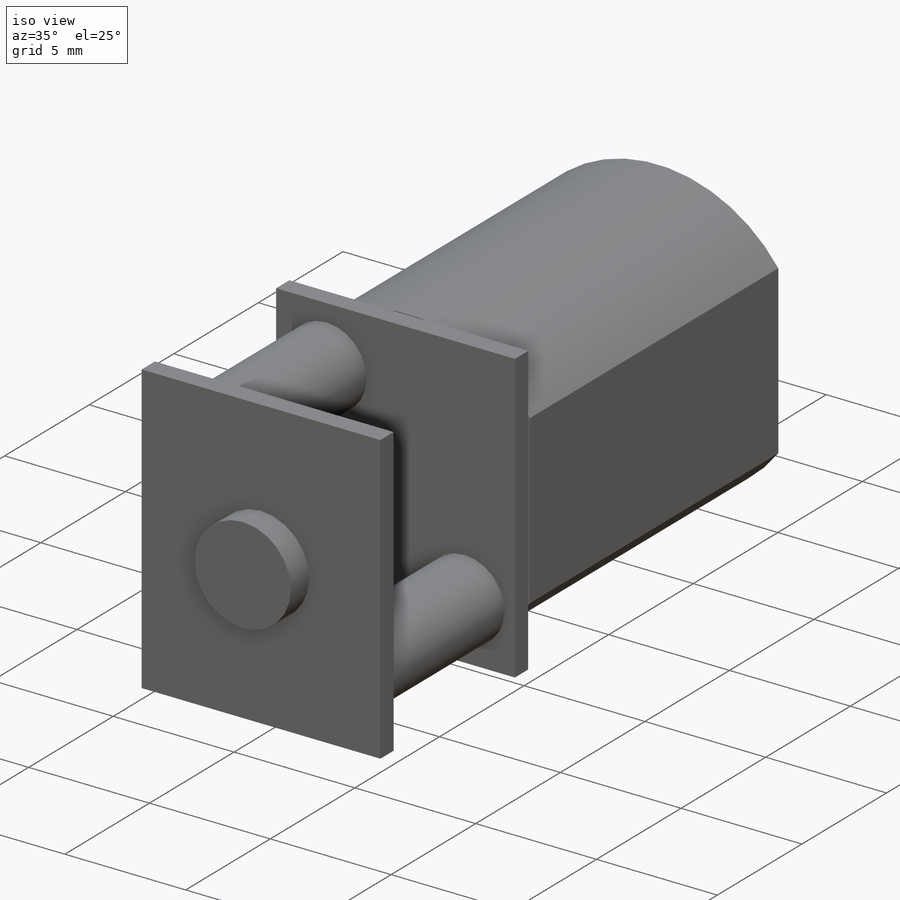
[diagram: iso view]
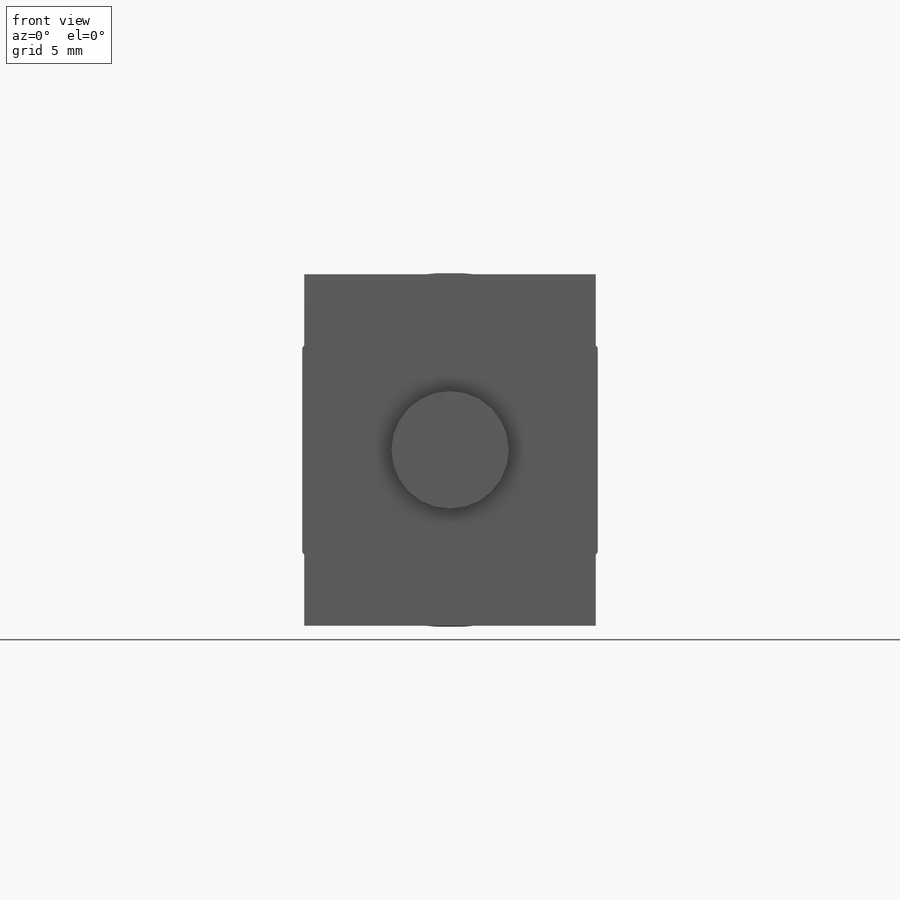
[diagram: front view]
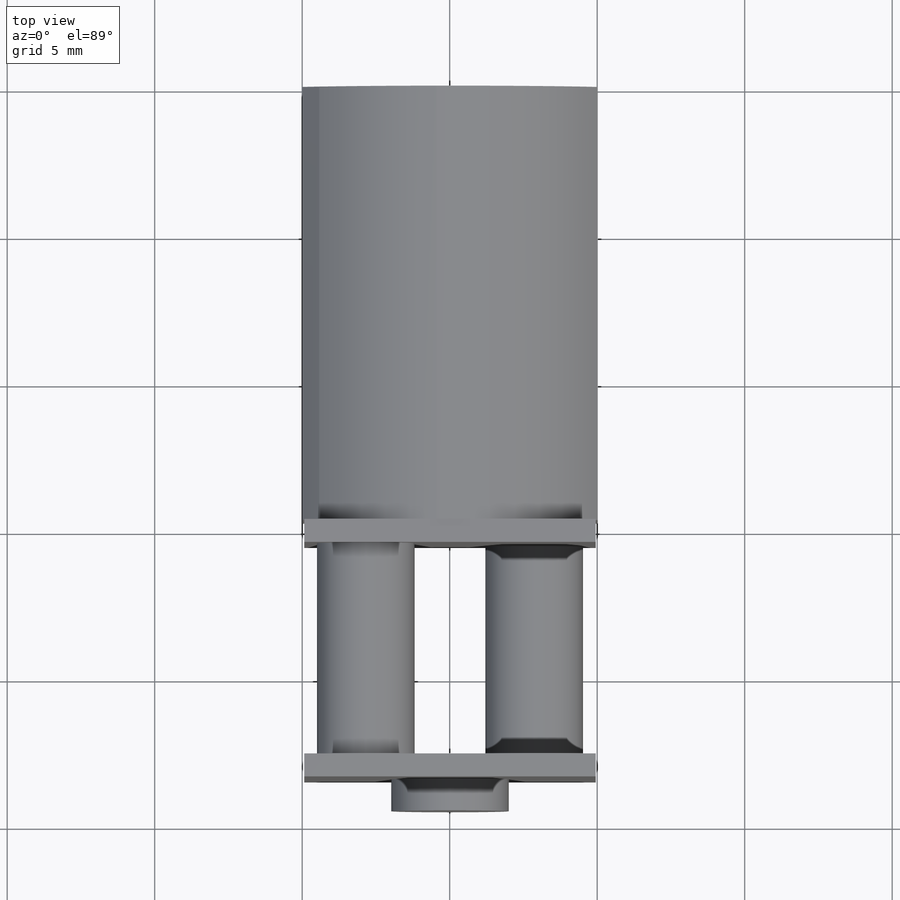
[diagram: top view]
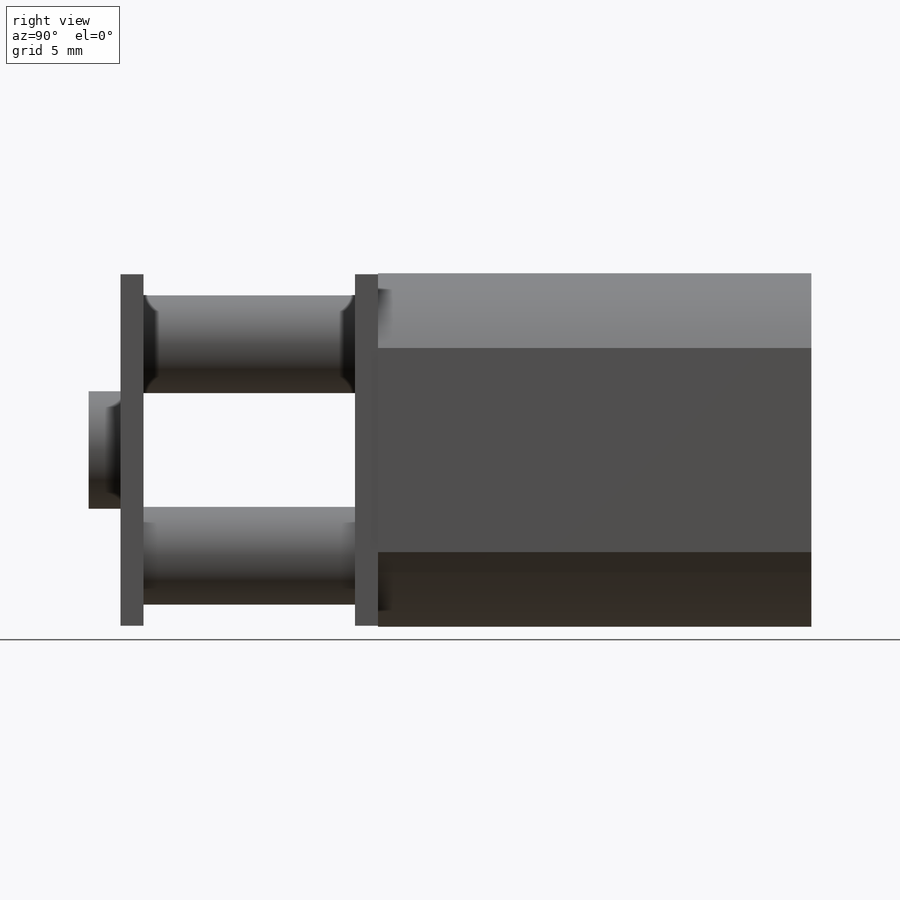
[diagram: right view]
SOLIDWORKS PART (.sldprt)
format: sldprt  version: not decoded by parser v0  size: 218,112 bytes
history: native  units: mm
features: sketch x5, extrude x5, plane x3, material x1 (+8 scaffold rows collapsed)
feature tree (22):
  scaffold x8  (default folders/planes/origin — collapsed)
  material  "Matériau <non spécifié>"
  plane  "Plan de face"
  plane  "Plan de dessus"
  plane  "Plan de droite"
  sketch  "Esquisse1"  dims[c1.D3=~6.196588mm c1.D4=~6.196588mm c1.D1=10.02mm c1.D2=6.92mm c2.D3=2.55mm c2.D4=2.55mm c2.D5=12.02mm]
  extrude  "Boss.-Extru.2"  Depth=14.69mm
  sketch  "Esquisse2"  dims[D1=11.92mm D2=9.88mm]
  extrude  "Boss.-Extru.3"  Depth=0.78mm
  sketch  "Esquisse3"  dims[c1.D3=16.55mm c1.D5=3.31mm c1.D6=3.31mm c1.D1=9.545mm c1.D2=2.085mm c2.D3=9.545mm c2.D4=2.085mm]
  extrude  "Boss.-Extru.4"  Depth=7.17mm
  sketch  "Esquisse4"  dims[D1=11.92mm D2=9.88mm D3=~15.482274mm]
  extrude  "Boss.-Extru.5"  Depth=0.78mm
  sketch  "Esquisse5"  dims[D1=3.98mm]
  extrude  "Boss.-Extru.6"  Depth=1.08mm
decode coverage: 10 of 10 modeling features carry decoded parameters
note: ~ marks probable driven/reference dimensions
note: suppression state not decoded; provenance and decode notes live in map.json
